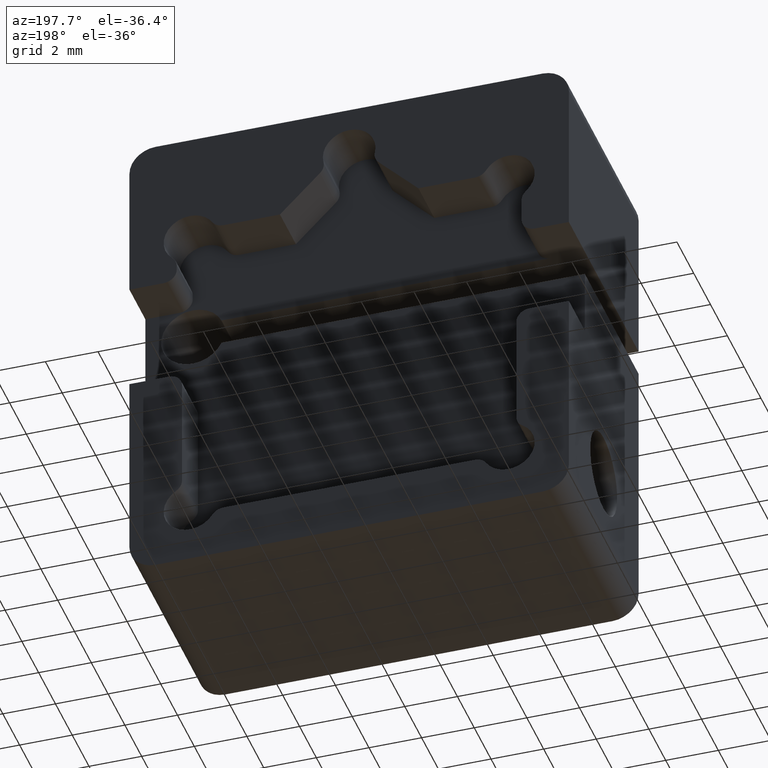
[diagram: clean part render]
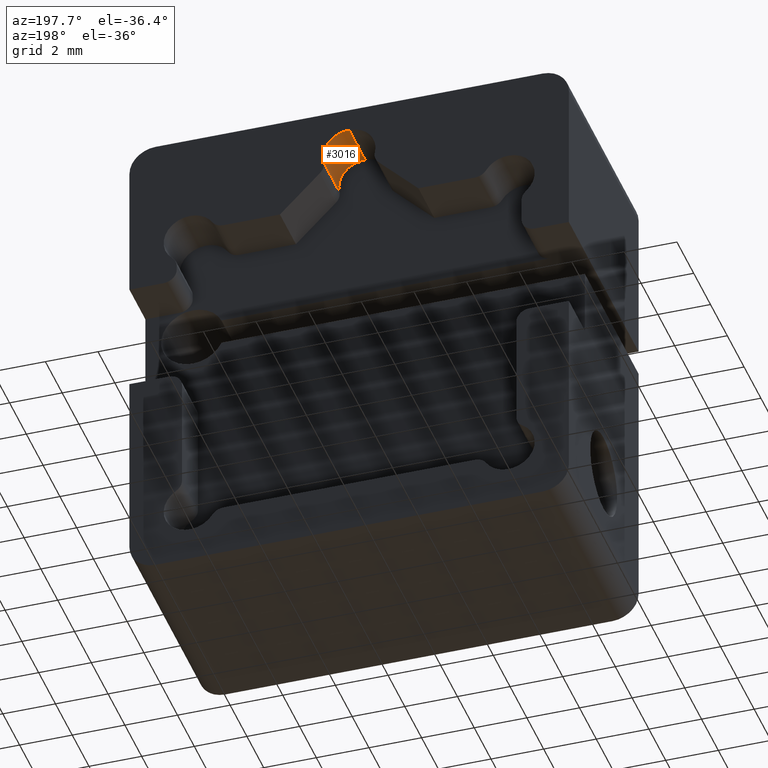
[diagram: same view with one face highlighted and labeled with its STEP entity id]
A machine part, auxiliary view. The second image highlights one B-rep face of the part: STEP entity #3016.
In plain terms, the highlighted cylindrical surface (edge-blend (fillet) strip) has radius 1 mm, axis along (0, 1, 0).
Its self-contained STEP definition (entity closure, byte-faithful):
#8 = EDGE_CURVE ( 'NONE', #2147, #263, #998, .T. ) ;
#121 = CARTESIAN_POINT ( 'NONE',  ( 0.000000000000000000, 8.300000000000000711, 7.505992052357222555 ) ) ;
#133 = DIRECTION ( 'NONE',  ( 0.000000000000000000, 0.000000000000000000, 1.000000000000000000 ) ) ;
#263 = VERTEX_POINT ( 'NONE', #1058 ) ;
#470 = CARTESIAN_POINT ( 'NONE',  ( 0.000000000000000000, 6.400000000000000355, 8.505992052357223443 ) ) ;
#513 = CARTESIAN_POINT ( 'NONE',  ( 0.000000000000000000, 3.571572875253809620, 8.505992052357223443 ) ) ;
#639 = ORIENTED_EDGE ( 'NONE', *, *, #1421, .T. ) ;
#664 = DIRECTION ( 'NONE',  ( -0.000000000000000000, -1.000000000000000000, -0.000000000000000000 ) ) ;
#764 = EDGE_CURVE ( 'NONE', #2737, #2147, #2472, .T. ) ;
#850 = DIRECTION ( 'NONE',  ( 0.000000000000000000, 1.000000000000000000, 0.000000000000000000 ) ) ;
#998 = LINE ( 'NONE', #513, #2291 ) ;
#999 = VECTOR ( 'NONE', #2442, 1000.000000000000000 ) ;
#1043 = CARTESIAN_POINT ( 'NONE',  ( 0.000000000000000000, 3.571572875253809620, 7.505992052357222555 ) ) ;
#1058 = CARTESIAN_POINT ( 'NONE',  ( 0.000000000000000000, 8.300000000000000711, 8.505992052357223443 ) ) ;
#1196 = AXIS2_PLACEMENT_3D ( 'NONE', #121, #850, #133 ) ;
#1279 = CYLINDRICAL_SURFACE ( 'NONE', #2730, 1.000000000000000888 ) ;
#1331 = VERTEX_POINT ( 'NONE', #1461 ) ;
#1421 = EDGE_CURVE ( 'NONE', #1331, #2737, #2458, .T. ) ;
#1461 = CARTESIAN_POINT ( 'NONE',  ( 0.9752688981303708760, 8.300000000000000711, 7.284970387492503363 ) ) ;
#1507 = DIRECTION ( 'NONE',  ( -0.000000000000000000, 1.000000000000000000, -0.000000000000000000 ) ) ;
#1539 = FACE_OUTER_BOUND ( 'NONE', #1961, .T. ) ;
#1583 = EDGE_CURVE ( 'NONE', #263, #1331, #2587, .T. ) ;
#1610 = DIRECTION ( 'NONE',  ( 8.881784197001244435E-16, 0.000000000000000000, 1.000000000000000000 ) ) ;
#1689 = ORIENTED_EDGE ( 'NONE', *, *, #1583, .T. ) ;
#1946 = ORIENTED_EDGE ( 'NONE', *, *, #8, .T. ) ;
#1961 = EDGE_LOOP ( 'NONE', ( #2014, #1946, #1689, #639 ) ) ;
#1973 = DIRECTION ( 'NONE',  ( 0.000000000000000000, 0.000000000000000000, 1.000000000000000000 ) ) ;
#2014 = ORIENTED_EDGE ( 'NONE', *, *, #764, .T. ) ;
#2133 = DIRECTION ( 'NONE',  ( -0.000000000000000000, 1.000000000000000000, -0.000000000000000000 ) ) ;
#2147 = VERTEX_POINT ( 'NONE', #470 ) ;
#2184 = CARTESIAN_POINT ( 'NONE',  ( 0.9752688981303709870, 3.571572875253809620, 7.284970387492503363 ) ) ;
#2291 = VECTOR ( 'NONE', #2133, 1000.000000000000000 ) ;
#2442 = DIRECTION ( 'NONE',  ( 0.000000000000000000, -1.000000000000000000, 0.000000000000000000 ) ) ;
#2458 = LINE ( 'NONE', #2184, #999 ) ;
#2472 = CIRCLE ( 'NONE', #2886, 1.000000000000000888 ) ;
#2587 = CIRCLE ( 'NONE', #1196, 1.000000000000000888 ) ;
#2730 = AXIS2_PLACEMENT_3D ( 'NONE', #1043, #1507, #1973 ) ;
#2737 = VERTEX_POINT ( 'NONE', #2966 ) ;
#2805 = CARTESIAN_POINT ( 'NONE',  ( 0.000000000000000000, 6.400000000000000355, 7.505992052357222555 ) ) ;
#2886 = AXIS2_PLACEMENT_3D ( 'NONE', #2805, #664, #1610 ) ;
#2966 = CARTESIAN_POINT ( 'NONE',  ( 0.9752688981303708760, 6.400000000000000355, 7.284970387492503363 ) ) ;
#3016 = ADVANCED_FACE ( 'NONE', ( #1539 ), #1279, .F. ) ;